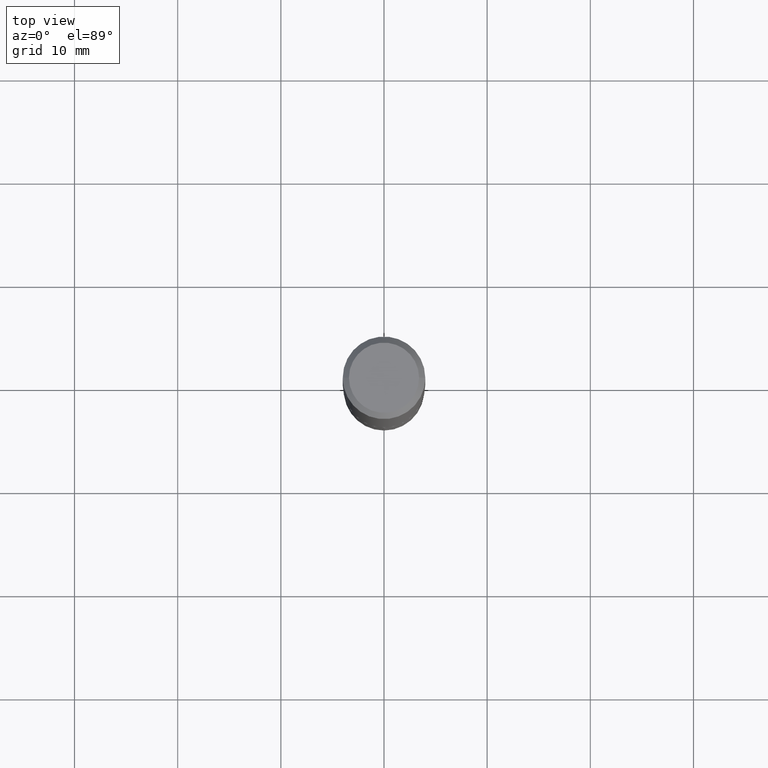
[diagram: clean part render]
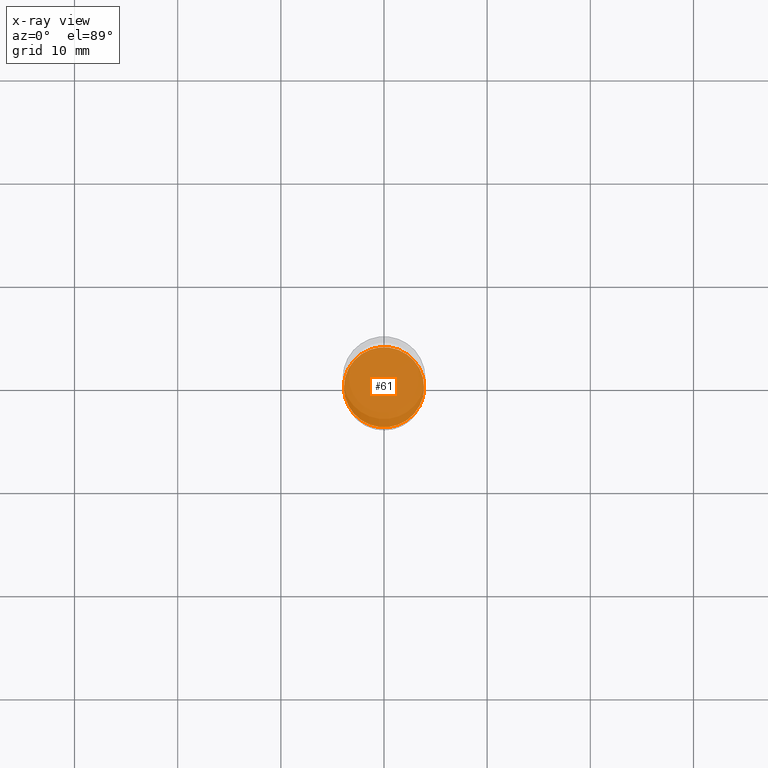
[diagram: x-ray — body ghosted, one internal face saturated and labeled with its STEP entity id]
A machine part, top view, then the same camera in x-ray: the body is ghosted and one INTERNAL B-rep face — a face not visible from any outside direction — is saturated and labeled: STEP entity #61.
In plain terms, the highlighted planar face has unit normal (-0, 0, 1).
Its self-contained STEP definition (entity closure, byte-faithful):
#61 = ADVANCED_FACE ( 'NONE', ( #360 ), #210, .F. ) ;
#74 = CARTESIAN_POINT ( 'NONE',  ( 5.179258384619500626E-29, -7.394608327535897484E-15, -2.117899999999999672 ) ) ;
#86 = ORIENTED_EDGE ( 'NONE', *, *, #431, .F. ) ;
#127 = DIRECTION ( 'NONE',  ( -2.445468806185136597E-29, 3.491481338843145583E-15, 1.000000000000000000 ) ) ;
#139 = ORIENTED_EDGE ( 'NONE', *, *, #267, .F. ) ;
#145 = DIRECTION ( 'NONE',  ( 1.000000000000000000, -6.982962677686265922E-15, 4.876176775795935793E-29 ) ) ;
#155 = EDGE_LOOP ( 'NONE', ( #139, #86 ) ) ;
#157 = AXIS2_PLACEMENT_3D ( 'NONE', #286, #434, #279 ) ;
#199 = CARTESIAN_POINT ( 'NONE',  ( 0.1530499999999999916, -8.463350765355780623E-15, -2.117899999999999672 ) ) ;
#208 = VERTEX_POINT ( 'NONE', #277 ) ;
#210 = PLANE ( 'NONE',  #299 ) ;
#219 = VERTEX_POINT ( 'NONE', #199 ) ;
#233 = CARTESIAN_POINT ( 'NONE',  ( 5.179258384619500626E-29, -7.394608327535897484E-15, -2.117899999999999672 ) ) ;
#254 = CIRCLE ( 'NONE', #157, 0.1530499999999999916 ) ;
#267 = EDGE_CURVE ( 'NONE', #219, #208, #326, .T. ) ;
#277 = CARTESIAN_POINT ( 'NONE',  ( -0.1530499999999999916, -6.304473443280952811E-15, -2.117899999999999672 ) ) ;
#279 = DIRECTION ( 'NONE',  ( 1.000000000000000000, -6.982962677686265922E-15, 0.000000000000000000 ) ) ;
#286 = CARTESIAN_POINT ( 'NONE',  ( 5.179258384619500626E-29, -7.394608327535897484E-15, -2.117899999999999672 ) ) ;
#299 = AXIS2_PLACEMENT_3D ( 'NONE', #74, #325, #145 ) ;
#325 = DIRECTION ( 'NONE',  ( -2.438088387897960049E-29, 3.491481338843145188E-15, 1.000000000000000000 ) ) ;
#326 = CIRCLE ( 'NONE', #462, 0.1530499999999999916 ) ;
#360 = FACE_OUTER_BOUND ( 'NONE', #155, .T. ) ;
#377 = DIRECTION ( 'NONE',  ( 1.000000000000000000, -6.982962677686265922E-15, 0.000000000000000000 ) ) ;
#431 = EDGE_CURVE ( 'NONE', #208, #219, #254, .T. ) ;
#434 = DIRECTION ( 'NONE',  ( -2.445468806185136597E-29, 3.491481338843145583E-15, 1.000000000000000000 ) ) ;
#462 = AXIS2_PLACEMENT_3D ( 'NONE', #233, #127, #377 ) ;